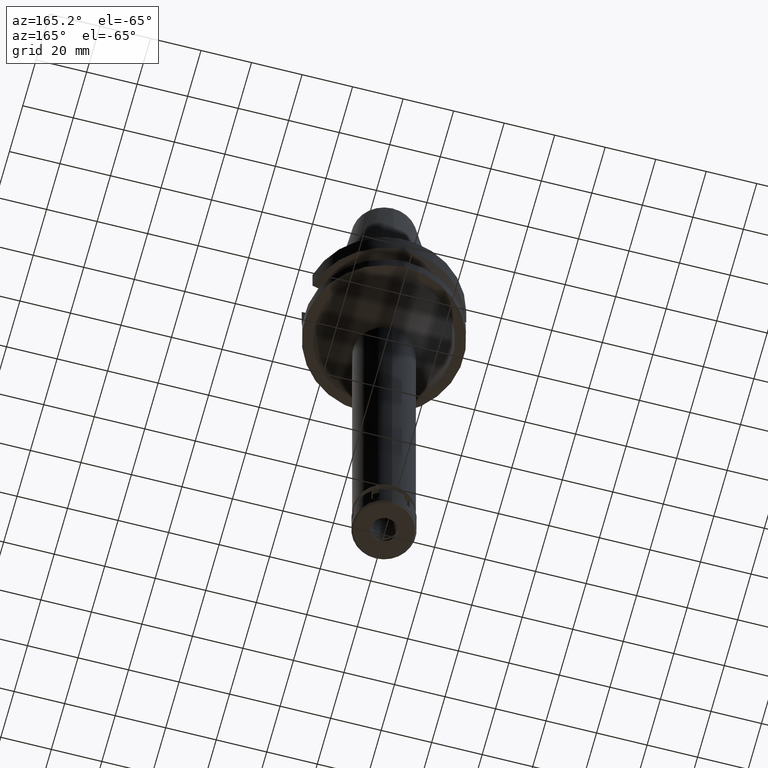
[diagram: clean part render]
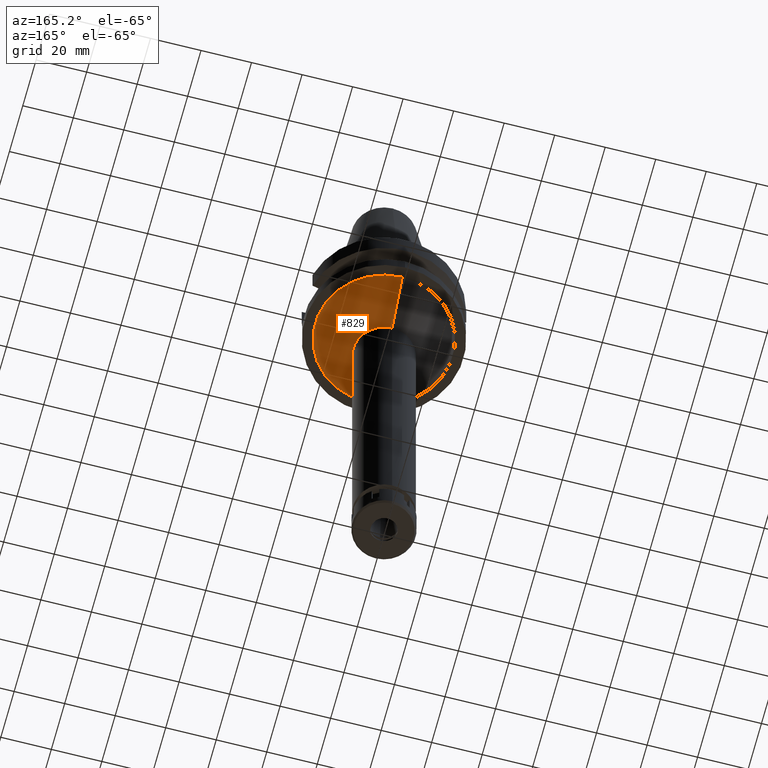
[diagram: same view with one face highlighted and labeled with its STEP entity id]
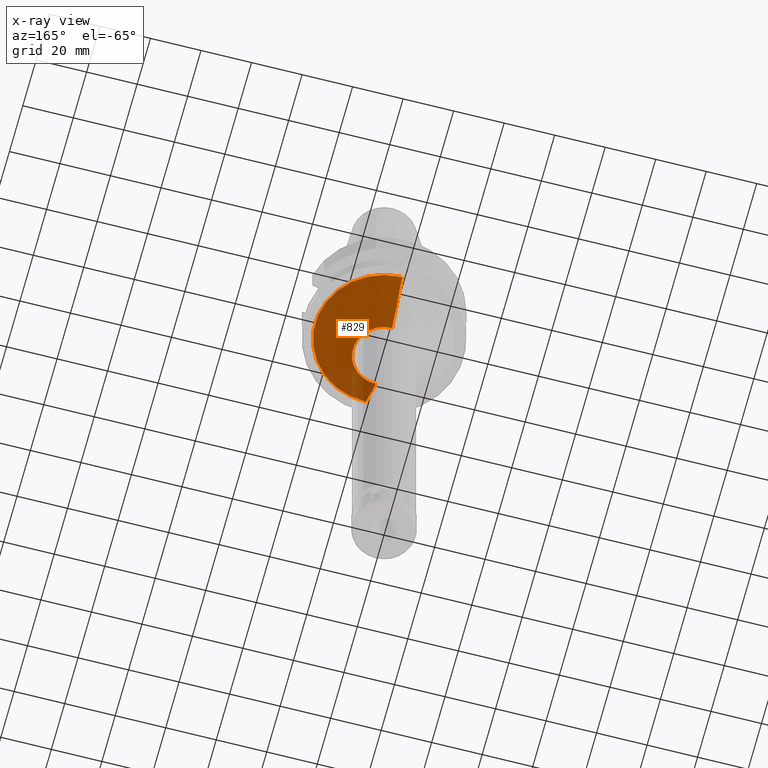
[diagram: x-ray of the same camera — body ghosted, the highlighted face saturated]
A machine part, auxiliary view. The second image highlights one B-rep face of the part: STEP entity #829.
The next image is the same camera in x-ray: the body ghosted, the highlighted face saturated — about 7% of this face is hidden behind the body in this view.
In plain terms, the highlighted conical surface has half-angle 45 deg.
Its self-contained STEP definition (entity closure, byte-faithful):
#119 = CARTESIAN_POINT ( 'NONE',  ( 0.0000000000000000000, 27.25000000000000000, -27.00000000000000000 ) ) ;
#170 = CIRCLE ( 'NONE', #2225, 27.25000000000000000 ) ;
#200 = CIRCLE ( 'NONE', #3259, 12.25000000000000000 ) ;
#235 = VERTEX_POINT ( 'NONE', #2796 ) ;
#243 = CARTESIAN_POINT ( 'NONE',  ( 0.0000000000000000000, 27.25000000000000000, -27.00000000000000000 ) ) ;
#301 = EDGE_LOOP ( 'NONE', ( #2992, #1296, #2964, #1913 ) ) ;
#403 = LINE ( 'NONE', #119, #3044 ) ;
#439 = DIRECTION ( 'NONE',  ( 0.0000000000000000000, -0.7071067811865474617, -0.7071067811865474617 ) ) ;
#525 = DIRECTION ( 'NONE',  ( 0.0000000000000000000, 1.000000000000000000, 0.0000000000000000000 ) ) ;
#806 = CARTESIAN_POINT ( 'NONE',  ( 0.0000000000000000000, 12.25000000000000000, -42.00000000000000000 ) ) ;
#829 = ADVANCED_FACE ( 'NONE', ( #2072 ), #1516, .T. ) ;
#907 = DIRECTION ( 'NONE',  ( 0.0000000000000000000, 0.0000000000000000000, -1.000000000000000000 ) ) ;
#1199 = DIRECTION ( 'NONE',  ( 0.0000000000000000000, 0.7071067811865474617, -0.7071067811865474617 ) ) ;
#1277 = CARTESIAN_POINT ( 'NONE',  ( 0.0000000000000000000, -12.25000000000000000, -42.00000000000000000 ) ) ;
#1296 = ORIENTED_EDGE ( 'NONE', *, *, #2998, .T. ) ;
#1368 = EDGE_CURVE ( 'NONE', #1539, #235, #170, .T. ) ;
#1516 = CONICAL_SURFACE ( 'NONE', #2459, 19.75000000000000000, 0.7853981633972997312 ) ;
#1539 = VERTEX_POINT ( 'NONE', #243 ) ;
#1560 = CARTESIAN_POINT ( 'NONE',  ( 0.0000000000000000000, 0.0000000000000000000, -34.50000000000000000 ) ) ;
#1793 = DIRECTION ( 'NONE',  ( 0.0000000000000000000, 1.000000000000000000, 0.0000000000000000000 ) ) ;
#1913 = ORIENTED_EDGE ( 'NONE', *, *, #2582, .F. ) ;
#1970 = VECTOR ( 'NONE', #1199, 1000.000000000000114 ) ;
#2072 = FACE_OUTER_BOUND ( 'NONE', #301, .T. ) ;
#2225 = AXIS2_PLACEMENT_3D ( 'NONE', #3487, #907, #1793 ) ;
#2350 = DIRECTION ( 'NONE',  ( 0.0000000000000000000, 1.000000000000000000, 0.0000000000000000000 ) ) ;
#2459 = AXIS2_PLACEMENT_3D ( 'NONE', #1560, #2668, #2350 ) ;
#2562 = VERTEX_POINT ( 'NONE', #1277 ) ;
#2582 = EDGE_CURVE ( 'NONE', #1539, #3530, #403, .T. ) ;
#2605 = CARTESIAN_POINT ( 'NONE',  ( 0.0000000000000000000, -27.25000000000000000, -27.00000000000000000 ) ) ;
#2668 = DIRECTION ( 'NONE',  ( 0.0000000000000000000, 0.0000000000000000000, 1.000000000000000000 ) ) ;
#2740 = DIRECTION ( 'NONE',  ( 0.0000000000000000000, 0.0000000000000000000, -1.000000000000000000 ) ) ;
#2796 = CARTESIAN_POINT ( 'NONE',  ( 0.0000000000000000000, -27.25000000000000000, -27.00000000000000000 ) ) ;
#2964 = ORIENTED_EDGE ( 'NONE', *, *, #3156, .F. ) ;
#2992 = ORIENTED_EDGE ( 'NONE', *, *, #1368, .T. ) ;
#2998 = EDGE_CURVE ( 'NONE', #235, #2562, #3486, .T. ) ;
#3032 = CARTESIAN_POINT ( 'NONE',  ( 0.0000000000000000000, 0.0000000000000000000, -42.00000000000000000 ) ) ;
#3044 = VECTOR ( 'NONE', #439, 1000.000000000000114 ) ;
#3156 = EDGE_CURVE ( 'NONE', #3530, #2562, #200, .T. ) ;
#3259 = AXIS2_PLACEMENT_3D ( 'NONE', #3032, #2740, #525 ) ;
#3486 = LINE ( 'NONE', #2605, #1970 ) ;
#3487 = CARTESIAN_POINT ( 'NONE',  ( 0.0000000000000000000, 0.0000000000000000000, -27.00000000000000000 ) ) ;
#3530 = VERTEX_POINT ( 'NONE', #806 ) ;